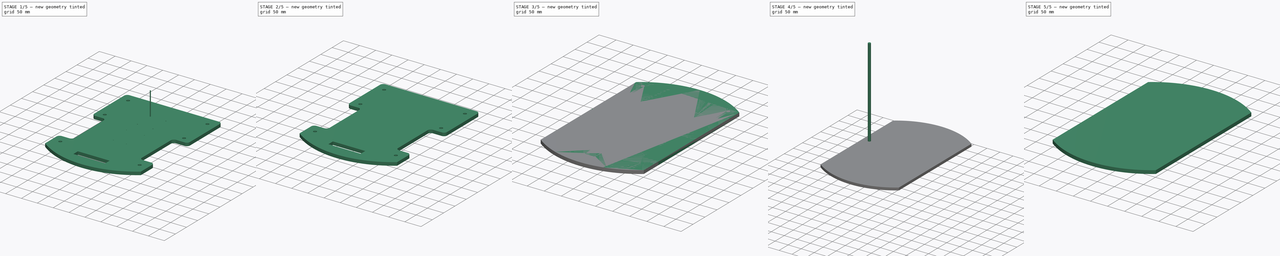
[diagram: build sequence overview — one tinted view per stage of 5, left to right]
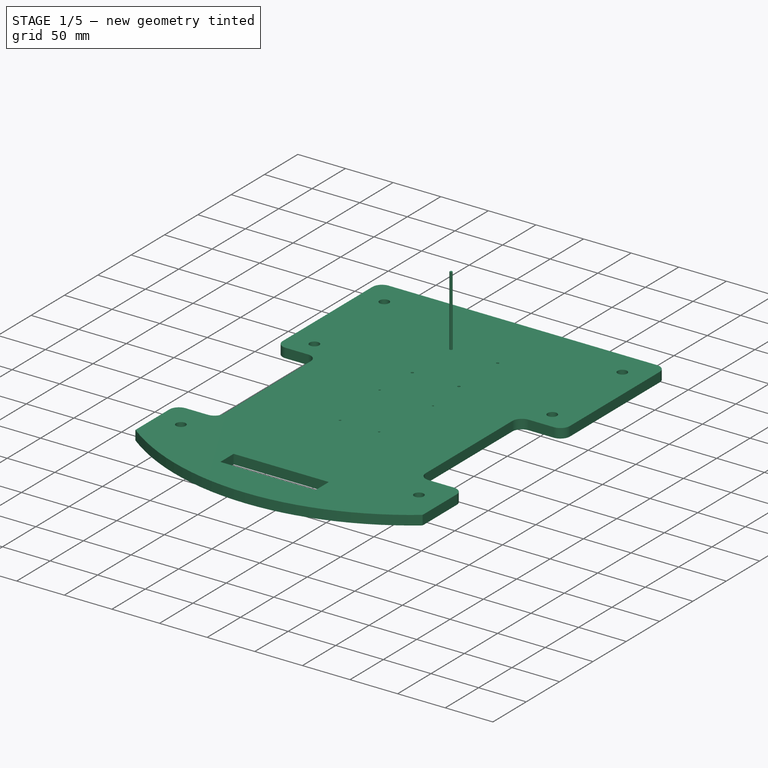
[diagram: stage 1 of 5 — iso view after this stage's code; geometry added in this stage tinted green]
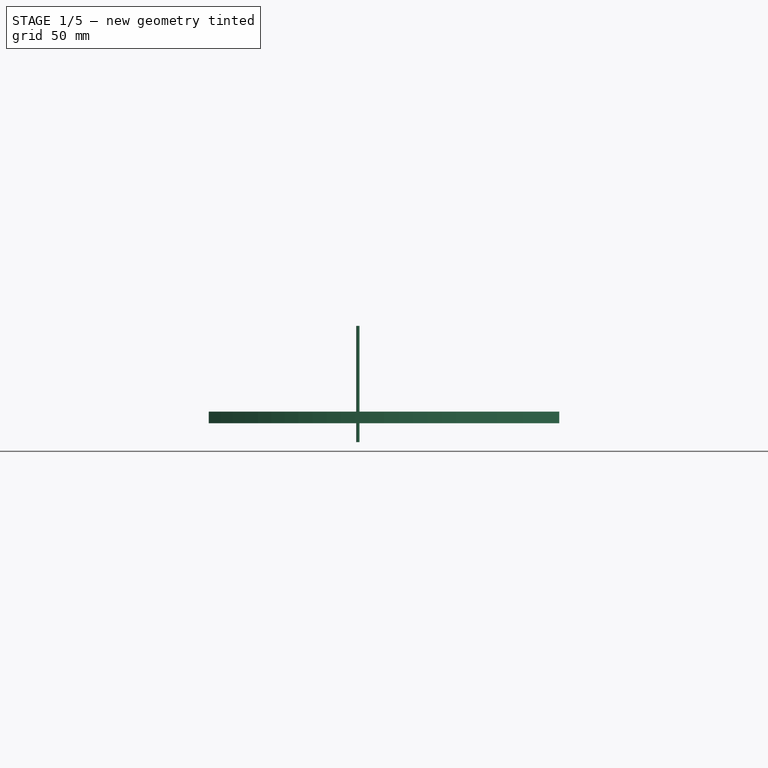
[diagram: stage 1 of 5 — front view after this stage's code; geometry added in this stage tinted green]
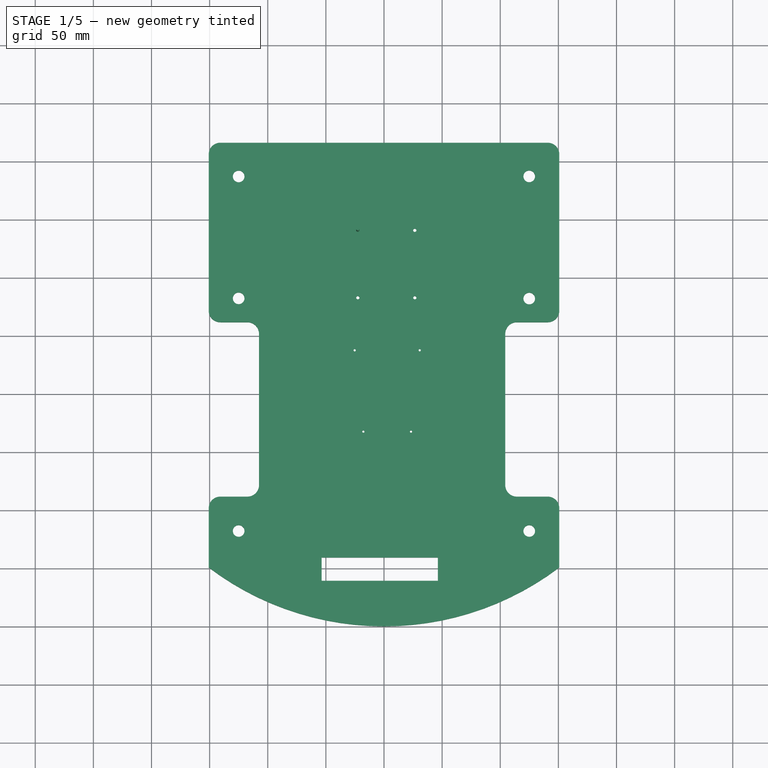
[diagram: stage 1 of 5 — top view after this stage's code; geometry added in this stage tinted green]
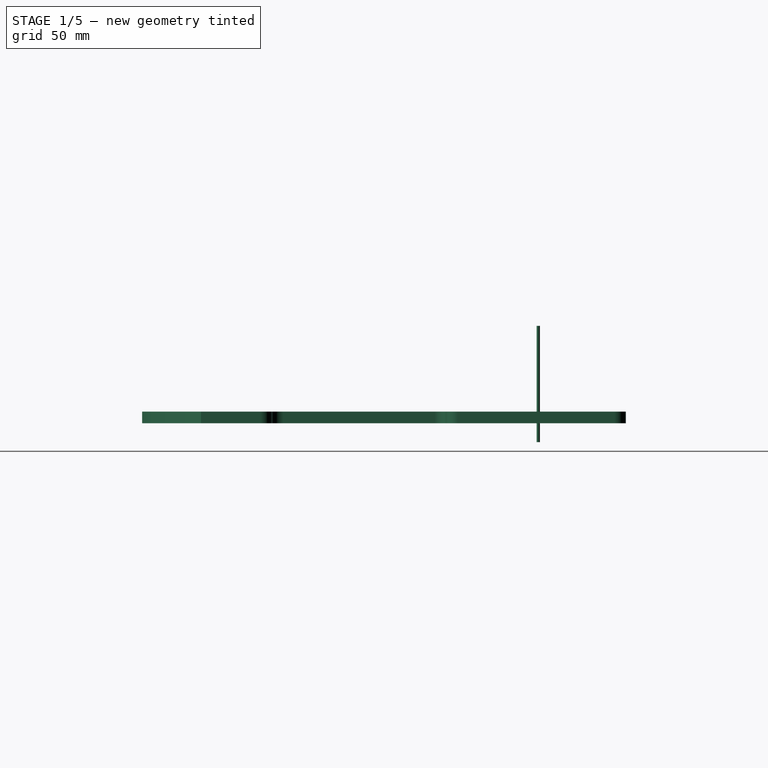
[diagram: stage 1 of 5 — right view after this stage's code; geometry added in this stage tinted green]
FCSTD DOCUMENT  (FreeCAD 0.19R24276 (Git))
Label: top
License: All rights reserved
LicenseURL: http://en.wikipedia.org/wiki/All_rights_reserved
objects: Part::Cut×19, Part::Cylinder×15, Part::Feature×7, Part::Fillet×4, Part::Box×4, Sketcher::SketchObject×2, PartDesign::Pad×2, PartDesign::Body×2, PartDesign::Plane×1
note: 58 computed .brp shape members not serialized (recipe doc carries the construction recipe); baked Part::Feature solids carry a one-line shape summary decoded from their .brp

FEATURE [Part::Cylinder] Cylinder016
  Angle = 360
  AttacherType = Attacher::AttachEngine3D
  Height = 100
  Placement = pos=(-22.5,90.71,-16.23) rot=(0,0,1;0rad)
  Radius = 1.4
FEATURE [Part::Cylinder] Cylinder017
  Angle = 360
  AttacherType = Attacher::AttachEngine3D
  Height = 100
  Placement = pos=(-17.77,-82.46,-47.69) rot=(0,0,1;0rad)
  Radius = 1
FEATURE [Part::Cylinder] Cylinder018
  Angle = 360
  AttacherType = Attacher::AttachEngine3D
  Height = 100
  Placement = pos=(23.23,-82.52,-29.79) rot=(0,0,1;0rad)
  Radius = 1
FEATURE [Part::Cylinder] Cylinder019
  Angle = 360
  AttacherType = Attacher::AttachEngine3D
  Height = 100
  Placement = pos=(-25.26,-12.51,-26.14) rot=(0,0,1;0rad)
  Radius = 1
FEATURE [Part::Cylinder] Cylinder020
  Angle = 360
  AttacherType = Attacher::AttachEngine3D
  Height = 100
  Placement = pos=(30.71,-12.51,-20.49) rot=(0,0,1;0rad)
  Radius = 1
FEATURE [Part::Feature] Cut025_solid  label="Cut025 (Solid)"
  shape: bbox 301.6 x 416 x 10 mm, 38 faces (baked)
FEATURE [Part::Cut] Cut026
  Base = -> Cut025_solid
  Tool = -> Cylinder017
FEATURE [Part::Cut] Cut027
  Base = -> Cut026
  Tool = -> Cylinder020
FEATURE [Part::Cut] Cut028
  Base = -> Cut027
  Tool = -> Cylinder019
FEATURE [Part::Cut] Cut029
  Base = -> Cut028
  Tool = -> Cylinder018
FEATURE [Part::Feature] Cut029_solid  label="Cut029 (Solid)"
  shape: bbox 301.6 x 416 x 10 mm, 42 faces (baked)
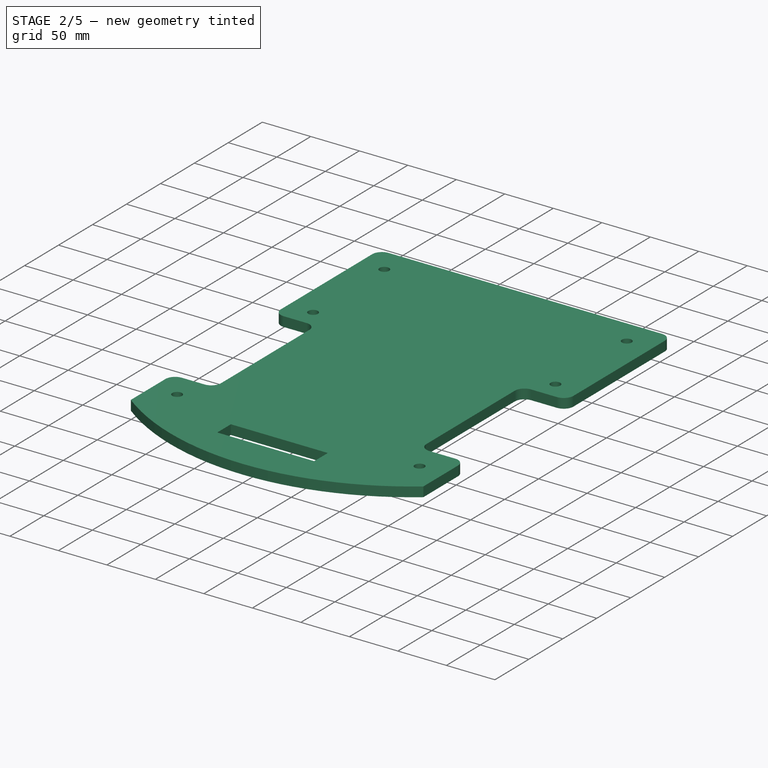
[diagram: stage 2 of 5 — iso view after this stage's code; geometry added in this stage tinted green]
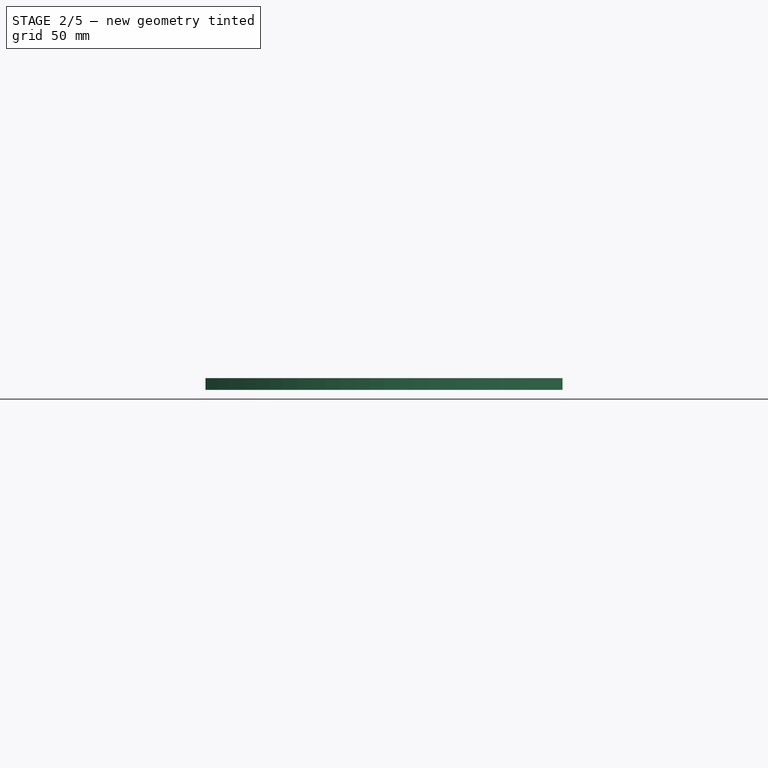
[diagram: stage 2 of 5 — front view after this stage's code; geometry added in this stage tinted green]
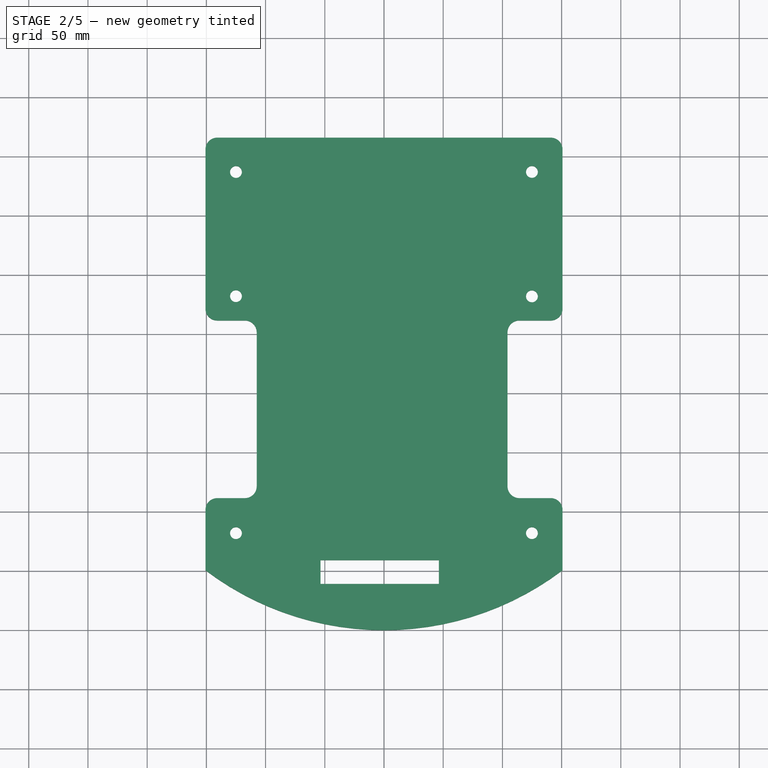
[diagram: stage 2 of 5 — top view after this stage's code; geometry added in this stage tinted green]
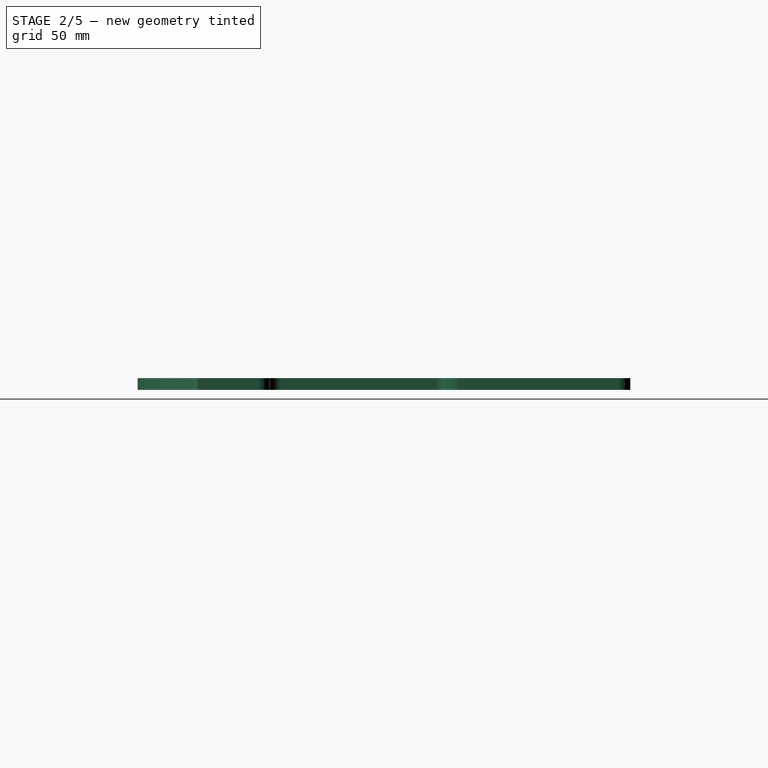
[diagram: stage 2 of 5 — right view after this stage's code; geometry added in this stage tinted green]
FEATURE [Part::Feature] Cut021_solid  label="Cut021 (Solid)"
  shape: bbox 301.6 x 416 x 10 mm, 24 faces (baked)
FEATURE [Part::Fillet] Fillet002
  Base = -> Cut021_solid
  Edges = 6 edges r=10: [Edge6,Edge10,Edge52,Edge54,Edge55,Edge56]
FEATURE [Part::Feature] Fillet002_solid  label="Fillet002 (Solid)"
  shape: bbox 301.6 x 416 x 10 mm, 30 faces (baked)
FEATURE [Part::Fillet] Fillet003
  Base = -> Fillet002_solid
  Edges = 4 edges r=10: [Edge61,Edge63,Edge66,Edge68]
FEATURE [Part::Feature] Fillet003_solid  label="Fillet003 (Solid)"
  shape: bbox 301.6 x 416 x 10 mm, 34 faces (baked)
FEATURE [Part::Cylinder] Cylinder013
  Angle = 360
  AttacherType = Attacher::AttachEngine3D
  Height = 100
  Placement = pos=(-22.52,32.66,-12.18) rot=(0,0,1;0rad)
  Radius = 1.4
FEATURE [Part::Cylinder] Cylinder014
  Angle = 360
  AttacherType = Attacher::AttachEngine3D
  Height = 100
  Placement = pos=(26.49,32.66,-26.46) rot=(0,0,1;0rad)
  Radius = 1.4
FEATURE [Part::Cylinder] Cylinder015
  Angle = 360
  AttacherType = Attacher::AttachEngine3D
  Height = 100
  Placement = pos=(26.49,90.66,-19.52) rot=(0,0,1;0rad)
  Radius = 1.4
FEATURE [Part::Cut] Cut022
  Base = -> Fillet003_solid
  Tool = -> Cylinder016
FEATURE [Part::Cut] Cut023
  Base = -> Cut022
  Tool = -> Cylinder013
FEATURE [Part::Cut] Cut024
  Base = -> Cut023
  Tool = -> Cylinder014
FEATURE [Part::Cut] Cut025
  Base = -> Cut024
  Tool = -> Cylinder015
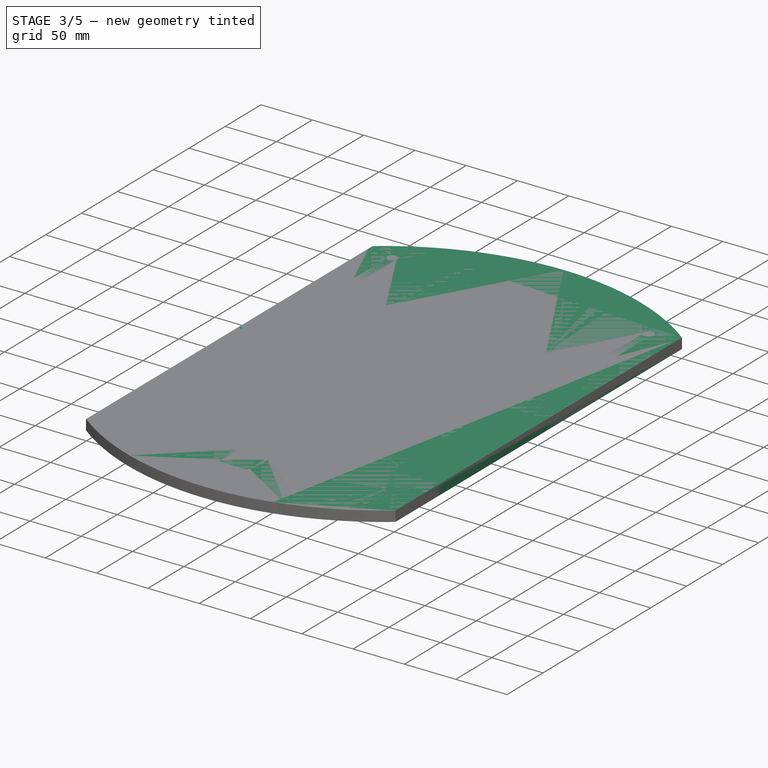
[diagram: stage 3 of 5 — iso view after this stage's code; geometry added in this stage tinted green]
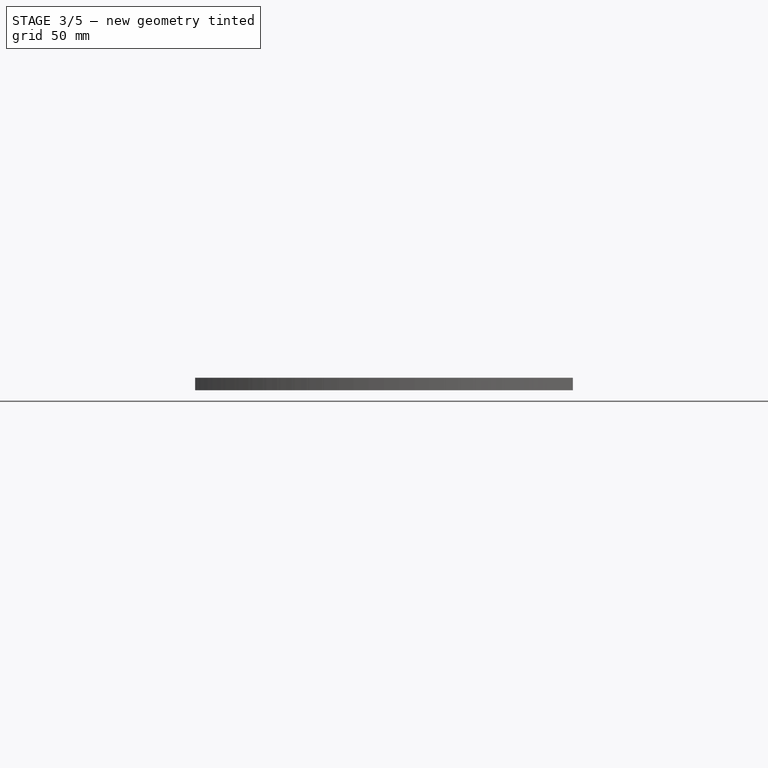
[diagram: stage 3 of 5 — front view after this stage's code; geometry added in this stage tinted green]
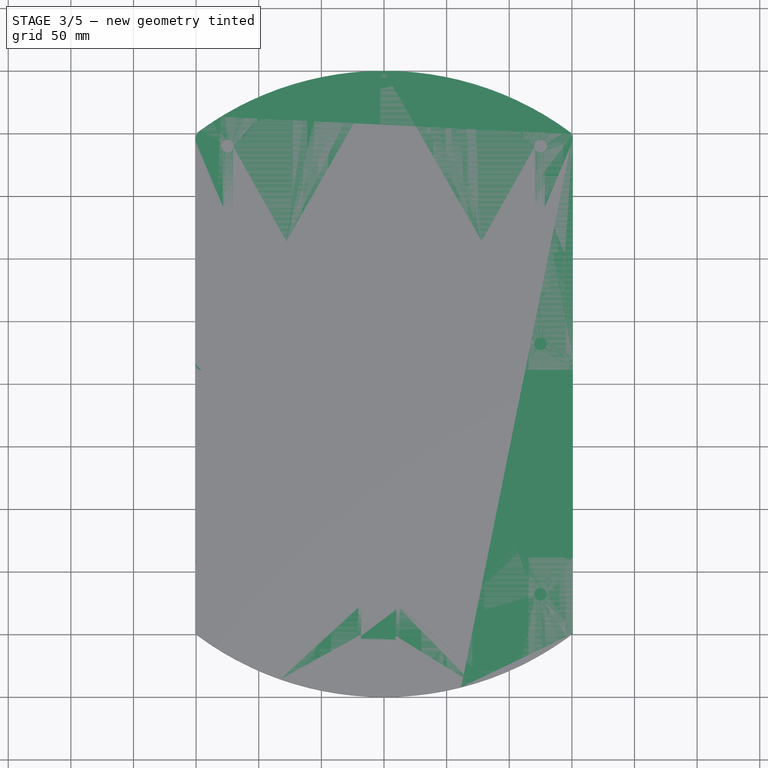
[diagram: stage 3 of 5 — top view after this stage's code; geometry added in this stage tinted green]
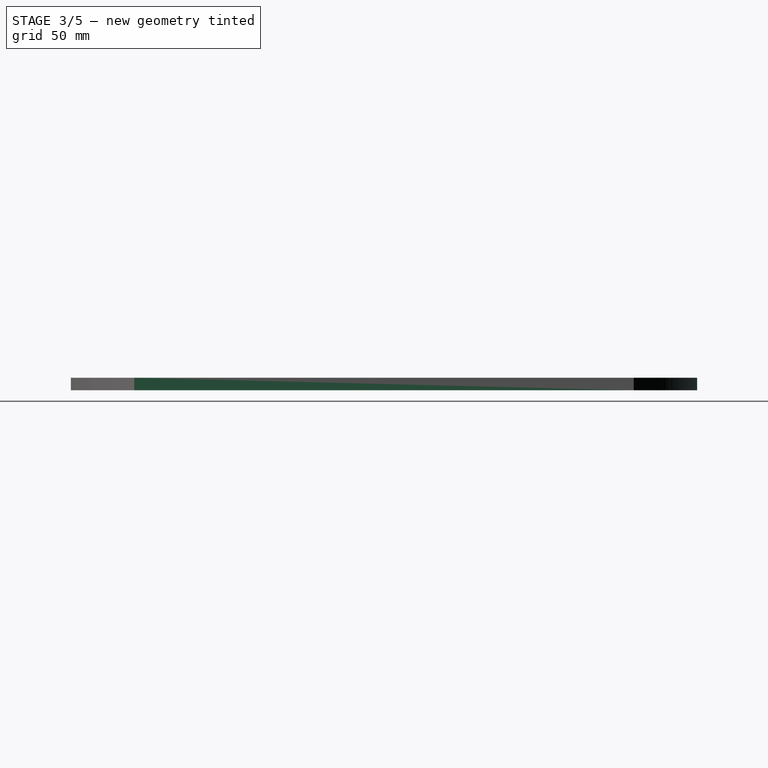
[diagram: stage 3 of 5 — right view after this stage's code; geometry added in this stage tinted green]
FEATURE [Part::Feature] Cut011_solid  label="Cut011 (Solid)"
  shape: bbox 301.6 x 500 x 10 mm, 50 faces (baked)
FEATURE [Part::Fillet] Fillet
  Base = -> Cut011_solid
  Edges = 4 edges r=5: [Edge6,Edge10,Edge104,Edge107]
FEATURE [Part::Fillet] Fillet001
  Base = -> Fillet
  Edges = 4 edges r=10: [Edge2,Edge59,Edge117,Edge119]
FEATURE [Part::Cylinder] Cylinder007
  Angle = 360
  AttacherType = Attacher::AttachEngine3D
  Height = 100
  Placement = pos=(-21.75,6.36,-27.17) rot=(0,0,1;0rad)
  Radius = 1.5
FEATURE [Part::Cut] Cut012
  Base = -> Fillet001
  Tool = -> Cylinder007
FEATURE [Sketcher::SketchObject] Sketch
  FullyConstrained = false
  MapMode = 5
  Support = -> [XY_Plane]
  sketch-geometry (4):
    g0: ArcOfCircle CenterX=0 CenterY=0 CenterZ=0 NormalX=0 NormalY=0 NormalZ=1 AngleXU=0 Radius=250 StartAngle=4.06493 EndAngle=5.35985
    g1: LineSegment StartX=150.791 StartY=199.404 StartZ=0 EndX=150.791 EndY=-199.404 EndZ=0
    g2: LineSegment StartX=-150.791 StartY=-199.404 StartZ=0 EndX=-150.791 EndY=199.404 EndZ=0
    g3: ArcOfCircle CenterX=0 CenterY=0 CenterZ=0 NormalX=0 NormalY=0 NormalZ=1 AngleXU=0 Radius=250 StartAngle=0.923333 EndAngle=2.21826
  constraints (8):
    c: Coincident(g0,g-1)
    c: Diameter(g0) = 500
    c: Vertical(g1)
    c: Vertical(g2)
    c: Equal(g0,g3)
    c: Coincident(g0,g1)
    c: PointOnObject(g3,g1)
    c: Coincident(g0,g3)
FEATURE [PartDesign::Pad] Pad
  Direction = (1,1,1)
  Length = 10
  Length2 = 100
  Profile = -> Sketch
  Type = 0
FEATURE [PartDesign::Plane] DatumPlane
  Length = 60
  MapMode = 5
  Placement = pos=(0,0,10) rot=(0,0,1;0rad)
  ResizeMode = 0
  Support = -> [Pad]
  Width = 60
FEATURE [PartDesign::Body] Body
  Group = -> [Sketch,Pad,DatumPlane]
  Origin = -> Origin
  Tip = -> Pad
FEATURE [Sketcher::SketchObject] Sketch001
  FullyConstrained = false
  MapMode = 5
  Support = -> [XY_Plane001]
  sketch-geometry (4):
    g0: ArcOfCircle CenterX=0 CenterY=0 CenterZ=0 NormalX=0 NormalY=0 NormalZ=1 AngleXU=0 Radius=250 StartAngle=4.06493 EndAngle=5.35985
    g1: LineSegment StartX=150.791 StartY=199.404 StartZ=0 EndX=150.791 EndY=-199.404 EndZ=0
    g2: LineSegment StartX=-150.791 StartY=-199.404 StartZ=0 EndX=-150.791 EndY=199.404 EndZ=0
    g3: ArcOfCircle CenterX=0 CenterY=0 CenterZ=0 NormalX=0 NormalY=0 NormalZ=1 AngleXU=0 Radius=250 StartAngle=0.923333 EndAngle=2.21826
  constraints (8):
    c: Coincident(g0,g-1)
    c: Diameter(g0) = 500
    c: Vertical(g1)
    c: Vertical(g2)
    c: Equal(g0,g3)
    c: Coincident(g0,g1)
    c: PointOnObject(g3,g1)
    c: Coincident(g0,g3)
FEATURE [PartDesign::Pad] Pad001
  Direction = (1,1,1)
  Length = 10
  Length2 = 100
  Profile = -> Sketch001
  Type = 0
FEATURE [PartDesign::Body] Body001
  Group = -> [Sketch001,Pad001]
  Origin = -> Origin001
  Tip = -> Pad001
FEATURE [Part::Feature] Cut020_solid  label="Cut020 (Solid)"
  shape: bbox 301.6 x 416 x 10 mm, 20 faces (baked)
FEATURE [Part::Box] Box003  label="Cube003"
  AttacherType = Attacher::AttachEngine3D
  Height = 500
  Length = 100
  Placement = pos=(-53.65,-210.87,-158.88) rot=(0,0,1;0rad)
  Width = 20
FEATURE [Part::Cut] Cut021
  Base = -> Cut020_solid
  Tool = -> Box003
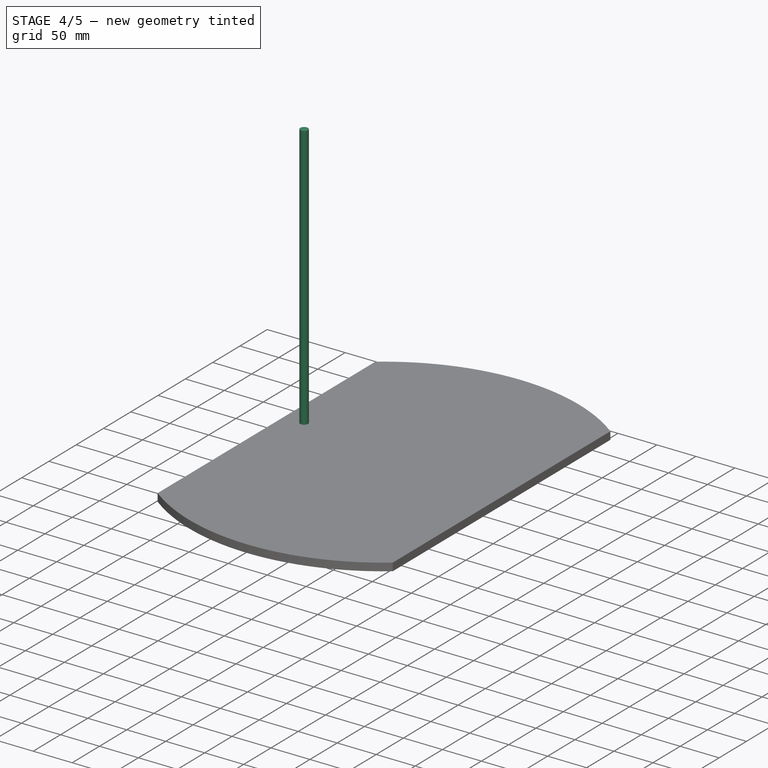
[diagram: stage 4 of 5 — iso view after this stage's code; geometry added in this stage tinted green]
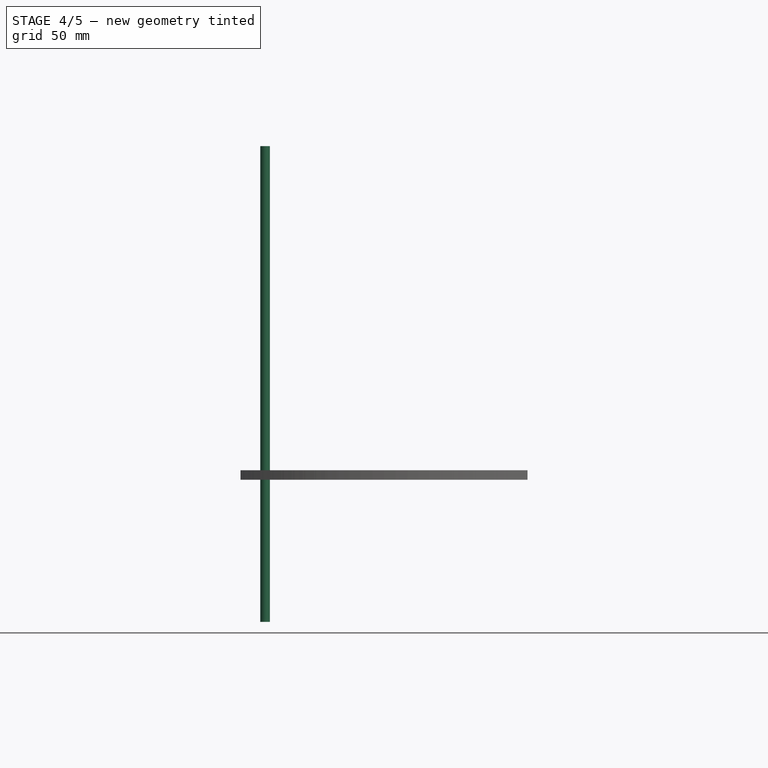
[diagram: stage 4 of 5 — front view after this stage's code; geometry added in this stage tinted green]
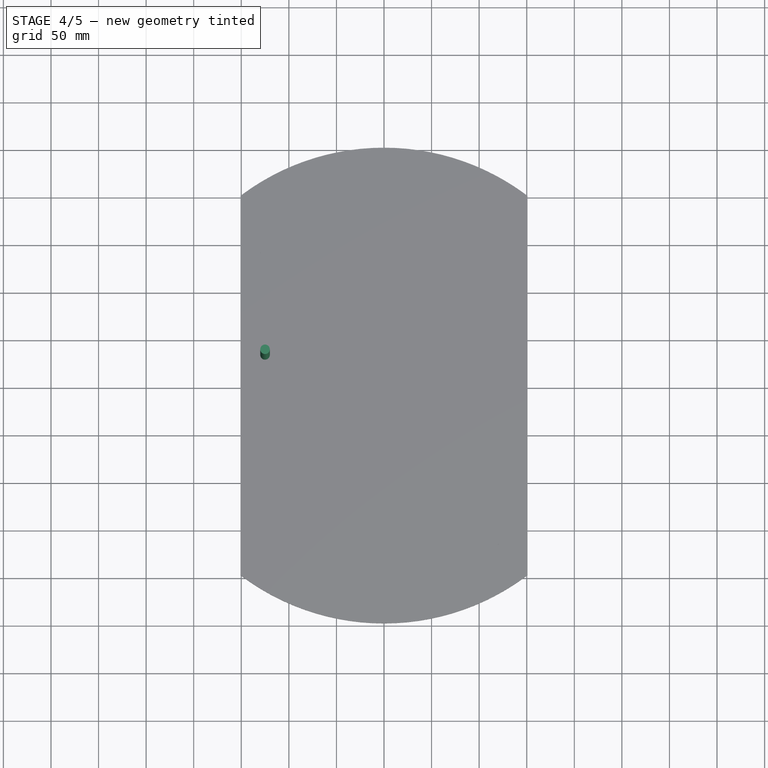
[diagram: stage 4 of 5 — top view after this stage's code; geometry added in this stage tinted green]
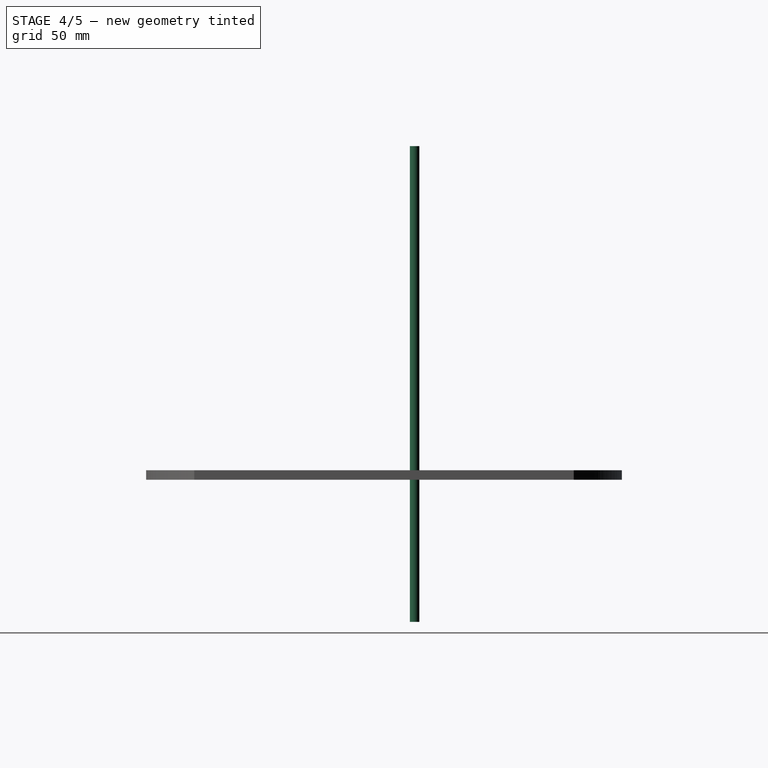
[diagram: stage 4 of 5 — right view after this stage's code; geometry added in this stage tinted green]
FEATURE [Part::Box] Box  label="Cube"
  AttacherType = Attacher::AttachEngine3D
  Height = 1000
  Length = 50
  Placement = pos=(-157.5,-138.44,-88.23) rot=(0,0,1;0rad)
  Width = 150
FEATURE [Part::Box] Box001  label="Cube001"
  AttacherType = Attacher::AttachEngine3D
  Height = 1000
  Length = 50
  Placement = pos=(104.29,-138.44,-241.98) rot=(0,0,1;0rad)
  Width = 150
FEATURE [Part::Box] Box002  label="Cube002"
  AttacherType = Attacher::AttachEngine3D
  Height = 100
  Length = 500
  Placement = pos=(-232.59,166.02,-26.18) rot=(0,0,1;0rad)
  Width = 150
FEATURE [Part::Cylinder] Cylinder
  Angle = 360
  AttacherType = Attacher::AttachEngine3D
  Height = 500
  Placement = pos=(-125.01,32.15,-149.34) rot=(0,0,1;0rad)
  Radius = 5
FEATURE [Part::Cylinder] Cylinder008
  Angle = 360
  AttacherType = Attacher::AttachEngine3D
  Height = 500
  Placement = pos=(-125.01,137,-130.87) rot=(0,0,1;0rad)
  Radius = 5
FEATURE [Part::Cut] Cut
  Base = -> Pad001
  Tool = -> Box002
FEATURE [Part::Cut] Cut013
  Base = -> Cut
  Tool = -> Box
FEATURE [Part::Cut] Cut014
  Base = -> Cut013
  Tool = -> Box001
FEATURE [Part::Cut] Cut015
  Base = -> Cut014
  Tool = -> Cylinder008
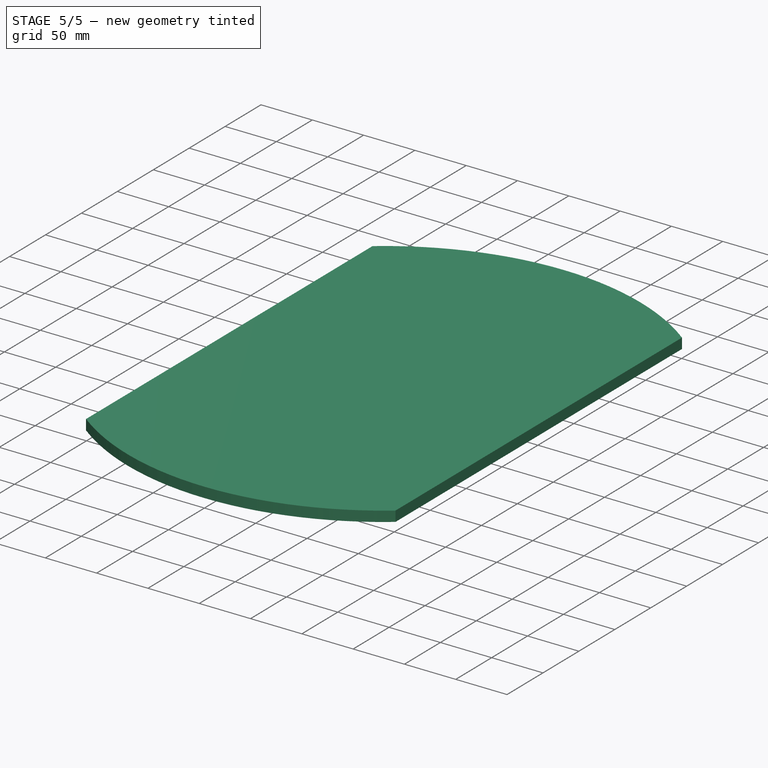
[diagram: stage 5 of 5 — iso view after this stage's code; geometry added in this stage tinted green]
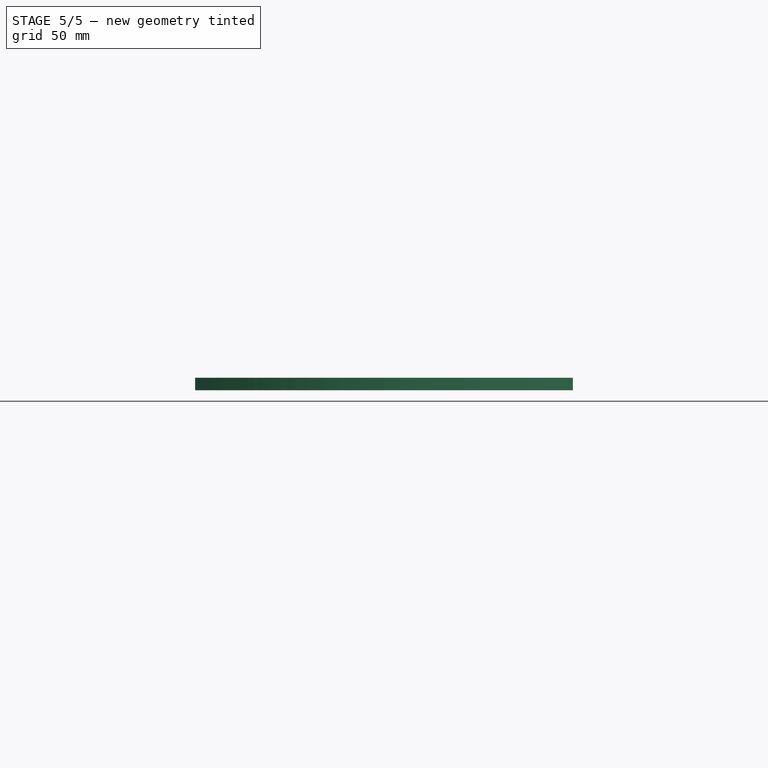
[diagram: stage 5 of 5 — front view after this stage's code; geometry added in this stage tinted green]
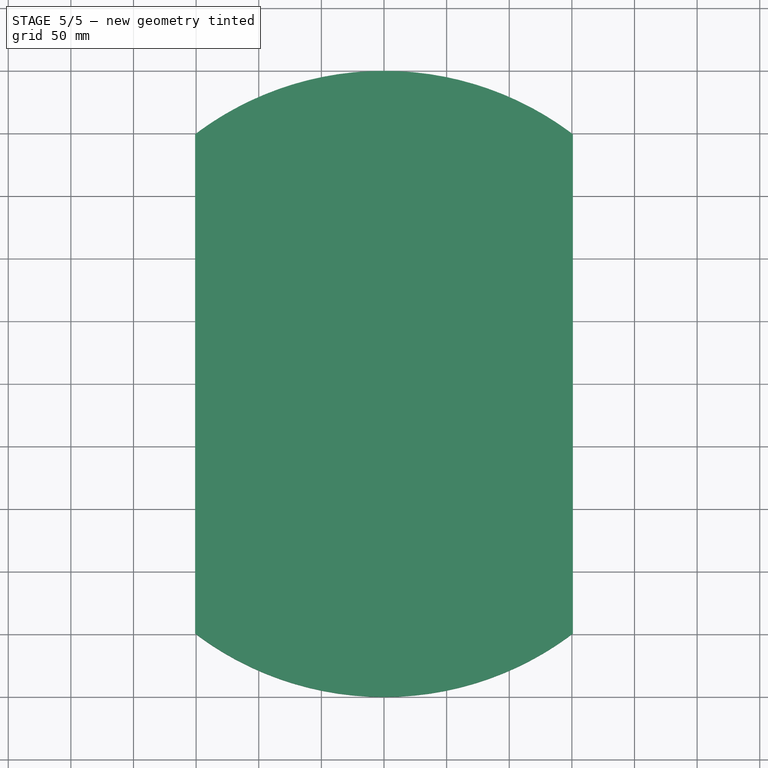
[diagram: stage 5 of 5 — top view after this stage's code; geometry added in this stage tinted green]
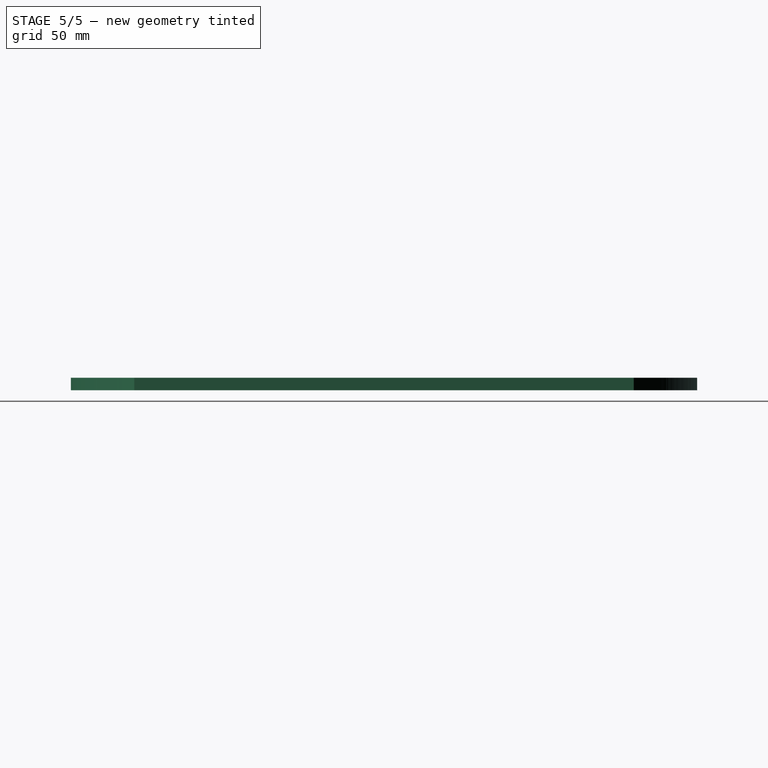
[diagram: stage 5 of 5 — right view after this stage's code; geometry added in this stage tinted green]
FEATURE [Part::Cylinder] Cylinder009
  Angle = 360
  AttacherType = Attacher::AttachEngine3D
  Height = 500
  Placement = pos=(-125.01,-168.01,-144.65) rot=(0,0,1;0rad)
  Radius = 5
FEATURE [Part::Cylinder] Cylinder010
  Angle = 360
  AttacherType = Attacher::AttachEngine3D
  Height = 500
  Placement = pos=(124.92,-168.01,-147.45) rot=(0,0,1;0rad)
  Radius = 5
FEATURE [Part::Cylinder] Cylinder011
  Angle = 360
  AttacherType = Attacher::AttachEngine3D
  Height = 500
  Placement = pos=(124.92,31.98,-97.99) rot=(0,0,1;0rad)
  Radius = 5
FEATURE [Part::Cylinder] Cylinder012
  Angle = 360
  AttacherType = Attacher::AttachEngine3D
  Height = 500
  Placement = pos=(124.92,137.06,-116.9) rot=(0,0,1;0rad)
  Radius = 5
FEATURE [Part::Cut] Cut016
  Base = -> Cut015
  Tool = -> Cylinder
FEATURE [Part::Cut] Cut017
  Base = -> Cut016
  Tool = -> Cylinder009
FEATURE [Part::Cut] Cut018
  Base = -> Cut017
  Tool = -> Cylinder010
FEATURE [Part::Cut] Cut019
  Base = -> Cut018
  Tool = -> Cylinder012
FEATURE [Part::Cut] Cut020
  Base = -> Cut019
  Tool = -> Cylinder011
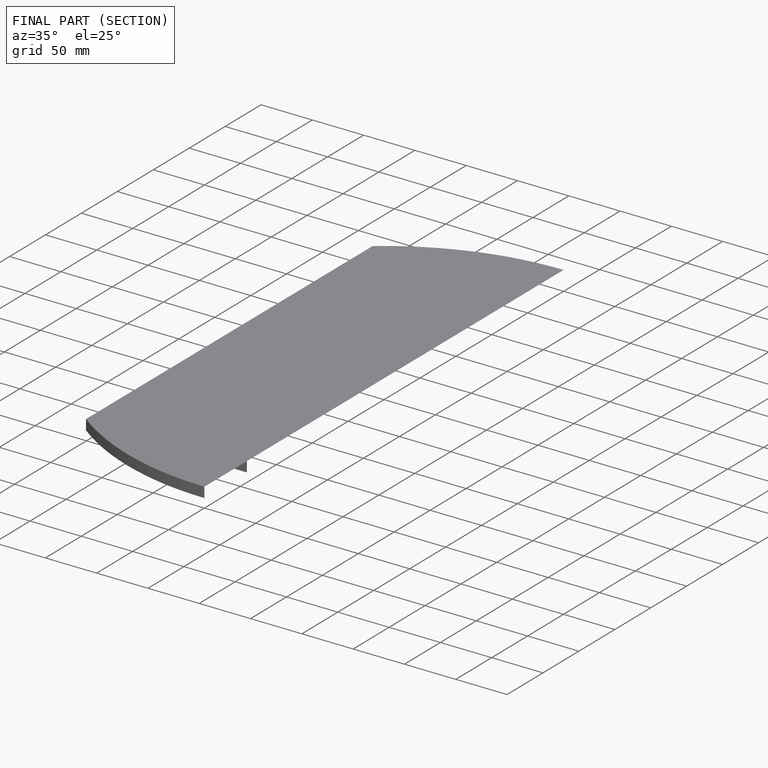
[diagram: finished part — half-section view (interior)]
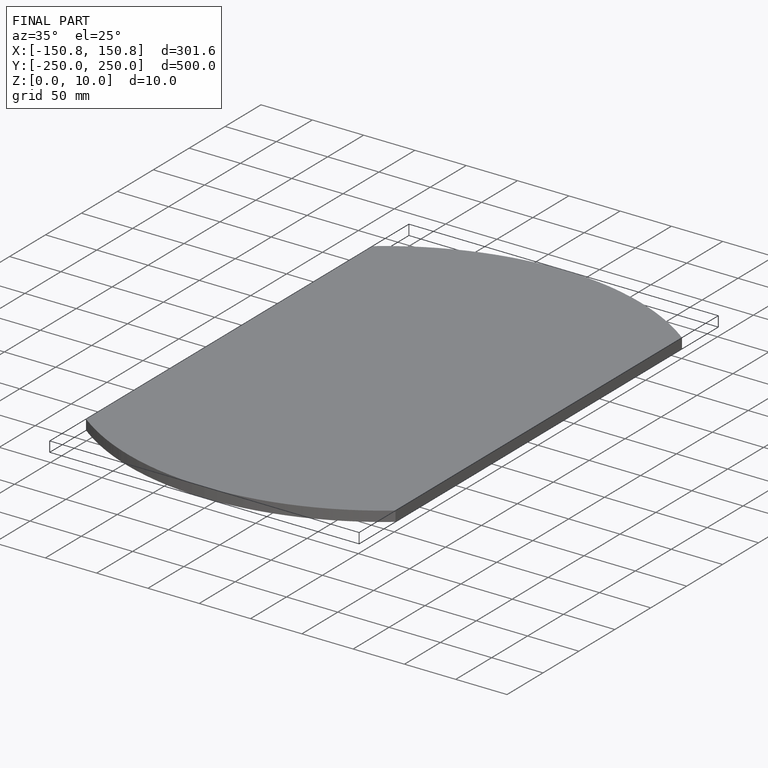
[diagram: finished part — iso view with bounding-box wireframe]
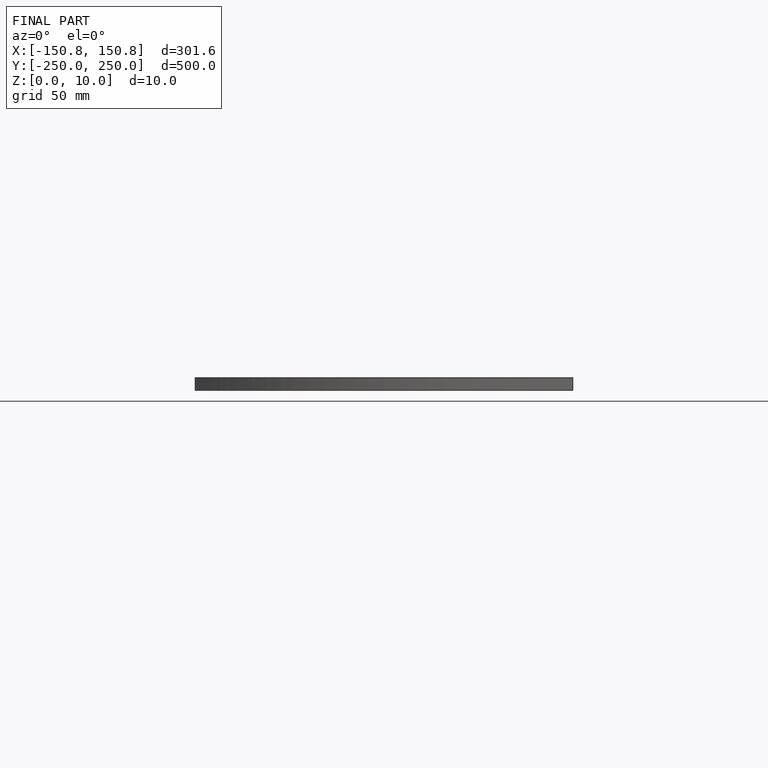
[diagram: finished part — front view with bounding-box wireframe]
